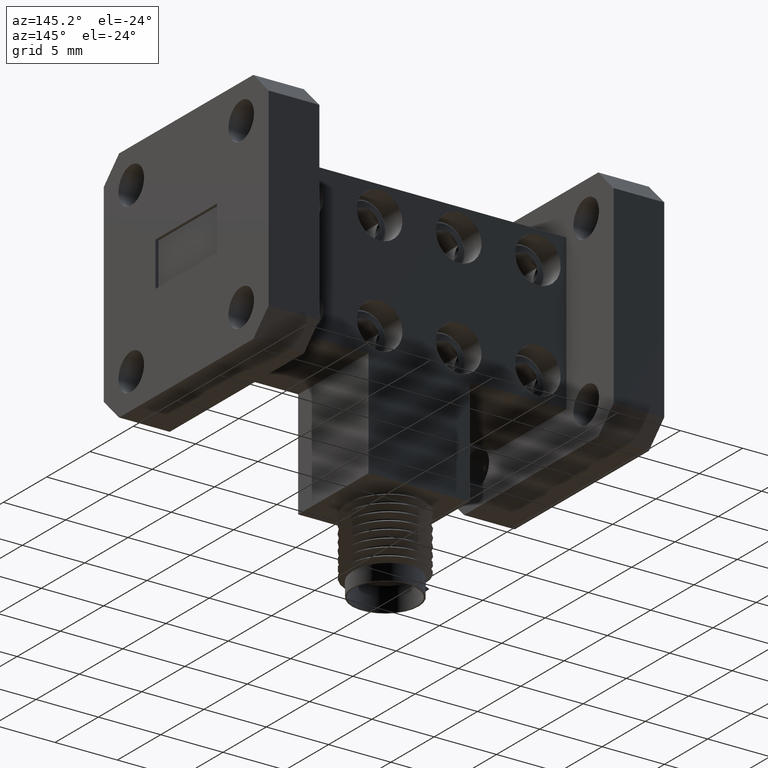
[diagram: clean part render]
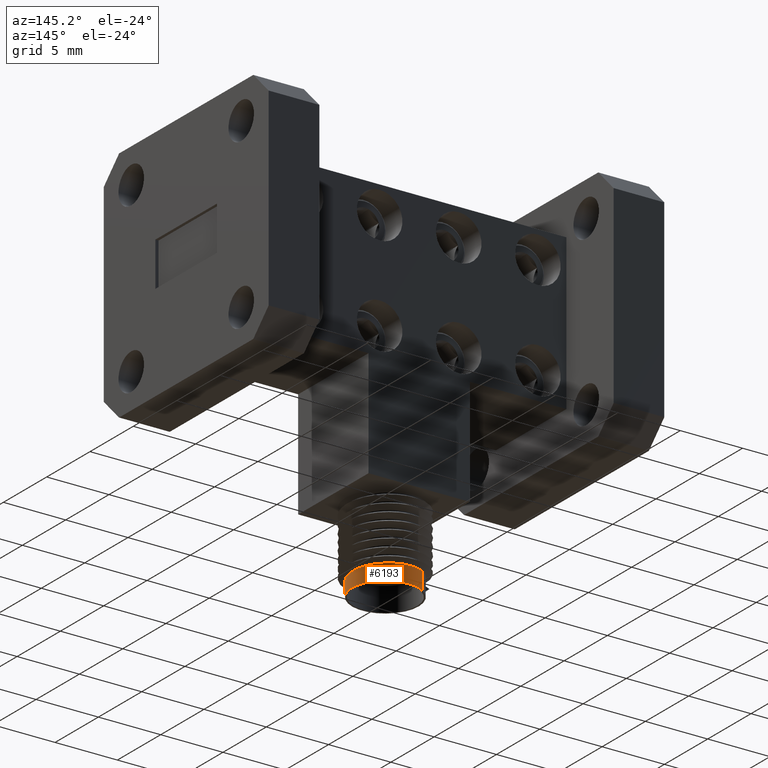
[diagram: same view with one face highlighted and labeled with its STEP entity id]
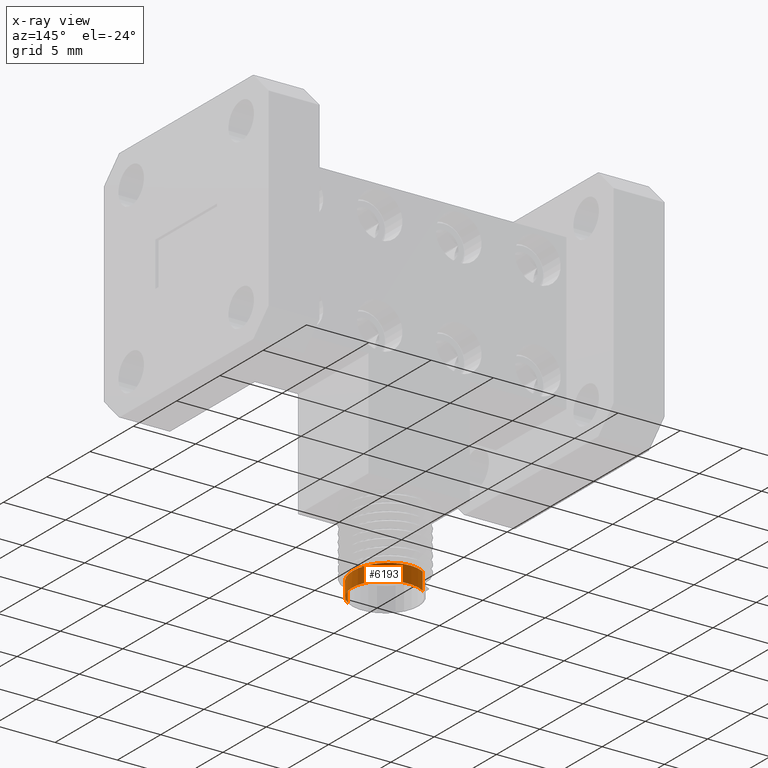
[diagram: x-ray of the same camera — body ghosted, the highlighted face saturated]
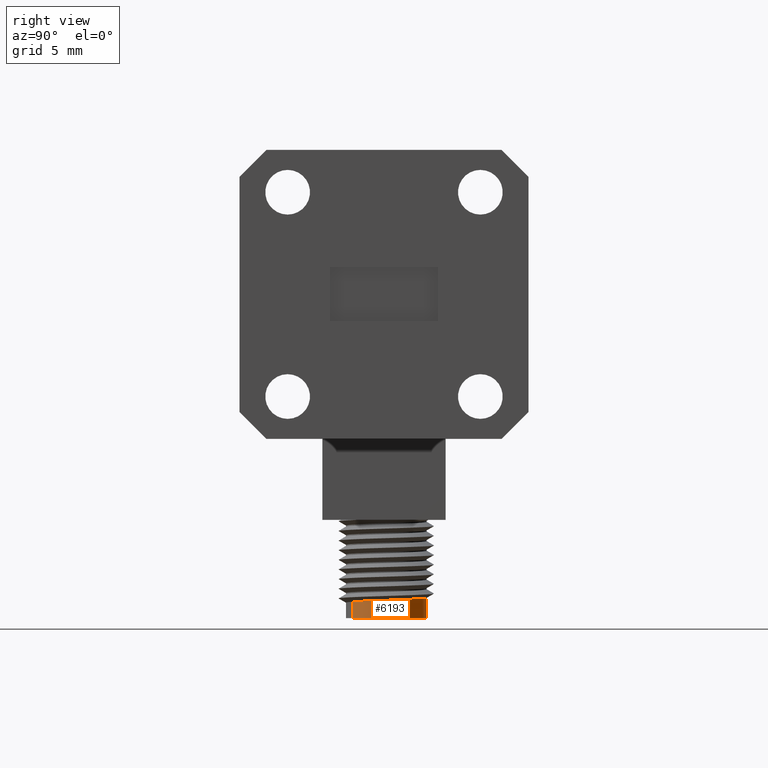
[diagram: same view with one face highlighted and labeled with its STEP entity id]
A machine part, auxiliary view. The second image highlights one B-rep face of the part: STEP entity #6193.
The next image is the same camera in x-ray: the body ghosted, the highlighted face saturated — about 0% of this face is hidden behind the body in this view.
A second angle (right view) of the same face is appended — the face is thin or edge-on in the first view.
In plain terms, the highlighted cylindrical surface (partial cylindrical patch) has radius 2.667 mm, axis along (0, 0, -1).
Its self-contained STEP definition (entity closure, byte-faithful):
#190 = VERTEX_POINT ( 'NONE', #7273 ) ;
#335 = CYLINDRICAL_SURFACE ( 'NONE', #6116, 0.1049999999999999800 ) ;
#464 = CARTESIAN_POINT ( 'NONE',  ( -0.07155804822859500300, 0.3014242244296433900, -0.7185334925322731700 ) ) ;
#563 = CARTESIAN_POINT ( 'NONE',  ( 0.05588876095955337000, 0.2914033561105050000, -0.6686423590549800400 ) ) ;
#646 = CARTESIAN_POINT ( 'NONE',  ( -0.05996509914315707000, 0.3089540094066187100, -0.6640006265905963300 ) ) ;
#741 = ORIENTED_EDGE ( 'NONE', *, *, #7283, .T. ) ;
#973 = ORIENTED_EDGE ( 'NONE', *, *, #2293, .T. ) ;
#1097 = CARTESIAN_POINT ( 'NONE',  ( 0.04282935358718625200, 0.1253119809431810800, -0.6759707590976653500 ) ) ;
#1153 = ORIENTED_EDGE ( 'NONE', *, *, #4905, .F. ) ;
#1157 = VERTEX_POINT ( 'NONE', #7525 ) ;
#1395 = FACE_OUTER_BOUND ( 'NONE', #1422, .T. ) ;
#1404 = DIRECTION ( 'NONE',  ( -4.159853254111648900E-016, -2.196581507382373700E-017, 1.000000000000000000 ) ) ;
#1422 = EDGE_LOOP ( 'NONE', ( #973, #741, #9785, #1153 ) ) ;
#1557 = CARTESIAN_POINT ( 'NONE',  ( 0.01083508638887229800, 0.3319640070875196100, -0.6665590257216460500 ) ) ;
#1878 = AXIS2_PLACEMENT_3D ( 'NONE', #7220, #1404, #9079 ) ;
#2212 = EDGE_CURVE ( 'NONE', #190, #8126, #6382, .T. ) ;
#2293 = EDGE_CURVE ( 'NONE', #1157, #9338, #6021, .T. ) ;
#3301 = VECTOR ( 'NONE', #12308, 39.37007874015748100 ) ;
#4139 = DIRECTION ( 'NONE',  ( 4.159853254111648900E-016, 2.196581507382373700E-017, -1.000000000000000000 ) ) ;
#4541 = CARTESIAN_POINT ( 'NONE',  ( -0.07155804822859444800, 0.3014242244296433900, -0.6634707590976656200 ) ) ;
#4905 = EDGE_CURVE ( 'NONE', #1157, #8126, #8004, .T. ) ;
#5290 = CARTESIAN_POINT ( 'NONE',  ( -0.01436434732070443800, 0.2133681026864119600, -0.2935334925322725100 ) ) ;
#6021 =( BOUNDED_CURVE ( )  B_SPLINE_CURVE ( 2, ( #4541, #646, #7379, #1557, #563, #10188, #11261, #11191, #9268 ),
 .UNSPECIFIED., .F., .T. ) 
 B_SPLINE_CURVE_WITH_KNOTS ( ( 3, 2, 2, 2, 3 ),
 ( 0.9374483800323200100, 0.9404761904761904700, 0.9523809523809523300, 0.9642857142857143000, 0.9731626657466055900 ),
 .UNSPECIFIED. ) 
 CURVE ( )  GEOMETRIC_REPRESENTATION_ITEM ( )  RATIONAL_B_SPLINE_CURVE ( ( 0.9491836400802169400, 0.9659254267426763400, 1.000000000000000000, 0.8660254037844387100, 1.000000000000000000, 0.8660254037844387100, 1.000000000000000000, 0.9000999770417635900, 0.9491836400802157200 ) ) 
 REPRESENTATION_ITEM ( '' )  );
#6116 = AXIS2_PLACEMENT_3D ( 'NONE', #5290, #4139, #6165 ) ;
#6165 = DIRECTION ( 'NONE',  ( -0.5447019134084812900, 0.8386297308879165900, 0.0000000000000000000 ) ) ;
#6193 = ADVANCED_FACE ( 'NONE', ( #1395 ), #335, .T. ) ;
#6382 = CIRCLE ( 'NONE', #1878, 0.1049999999999999800 ) ;
#7220 = CARTESIAN_POINT ( 'NONE',  ( -0.01436434732070443600, 0.2133681026864122100, -0.7185334925322731700 ) ) ;
#7273 = CARTESIAN_POINT ( 'NONE',  ( 0.04282935358718612700, 0.1253119809431810000, -0.7185334925322731700 ) ) ;
#7283 = EDGE_CURVE ( 'NONE', #9338, #190, #9346, .T. ) ;
#7379 = CARTESIAN_POINT ( 'NONE',  ( -0.04681830503659717400, 0.3132267058639798800, -0.6644756923883137200 ) ) ;
#7525 = CARTESIAN_POINT ( 'NONE',  ( -0.07155804822859444800, 0.3014242244296433400, -0.6634707590976656200 ) ) ;
#7627 = CARTESIAN_POINT ( 'NONE',  ( -0.07155804822859496200, 0.3014242244296431700, -0.2935334925322725100 ) ) ;
#8004 = LINE ( 'NONE', #7627, #3301 ) ;
#8126 = VERTEX_POINT ( 'NONE', #464 ) ;
#9079 = DIRECTION ( 'NONE',  ( 0.5447019134084812900, -0.8386297308879164800, 0.0000000000000000000 ) ) ;
#9268 = CARTESIAN_POINT ( 'NONE',  ( 0.04282935358718625200, 0.1253119809431810800, -0.6759707590976653500 ) ) ;
#9338 = VERTEX_POINT ( 'NONE', #1097 ) ;
#9346 = LINE ( 'NONE', #11814, #12179 ) ;
#9785 = ORIENTED_EDGE ( 'NONE', *, *, #2212, .T. ) ;
#10188 = CARTESIAN_POINT ( 'NONE',  ( 0.1009424355302337700, 0.2508427051334901600, -0.6707256923883127000 ) ) ;
#11191 = CARTESIAN_POINT ( 'NONE',  ( 0.07930323139680066400, 0.1490022822771073000, -0.6743036835287138400 ) ) ;
#11261 = CARTESIAN_POINT ( 'NONE',  ( 0.08834271867544543600, 0.1915447529329369100, -0.6728090257216470200 ) ) ;
#11730 = DIRECTION ( 'NONE',  ( 4.159853254111648900E-016, 2.196581507382373700E-017, -1.000000000000000000 ) ) ;
#11814 = CARTESIAN_POINT ( 'NONE',  ( 0.04282935358718610600, 0.1253119809431807700, -0.2935334925322725100 ) ) ;
#12179 = VECTOR ( 'NONE', #11730, 39.37007874015748100 ) ;
#12308 = DIRECTION ( 'NONE',  ( 4.159853254111648900E-016, 2.196581507382373700E-017, -1.000000000000000000 ) ) ;